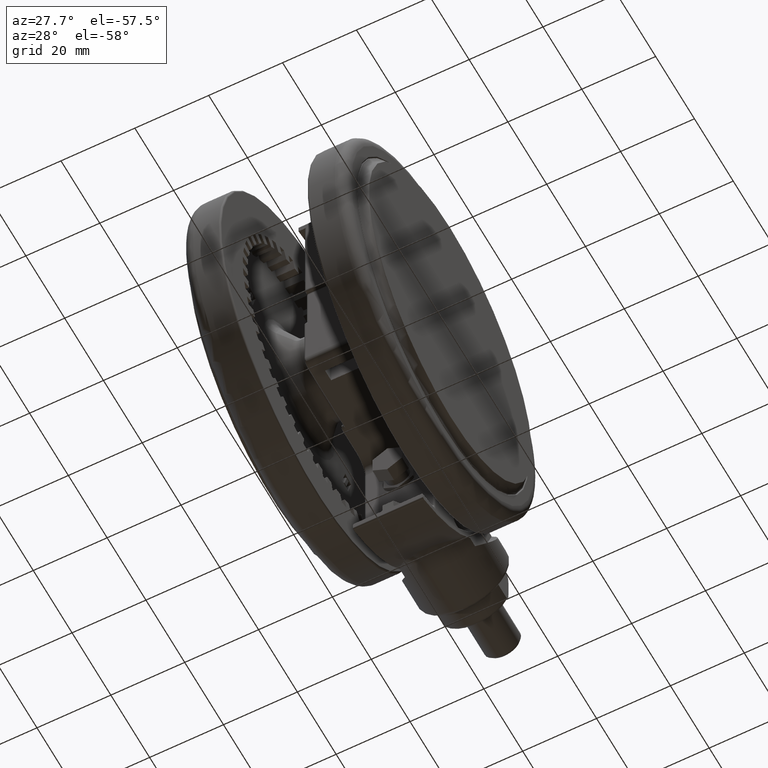
[diagram: clean part render]
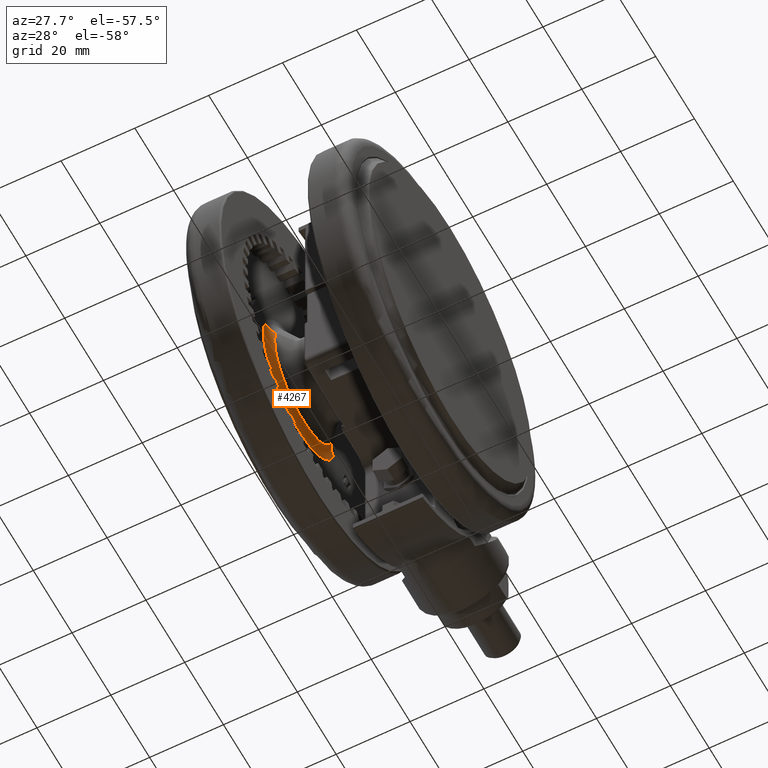
[diagram: same view with one face highlighted and labeled with its STEP entity id]
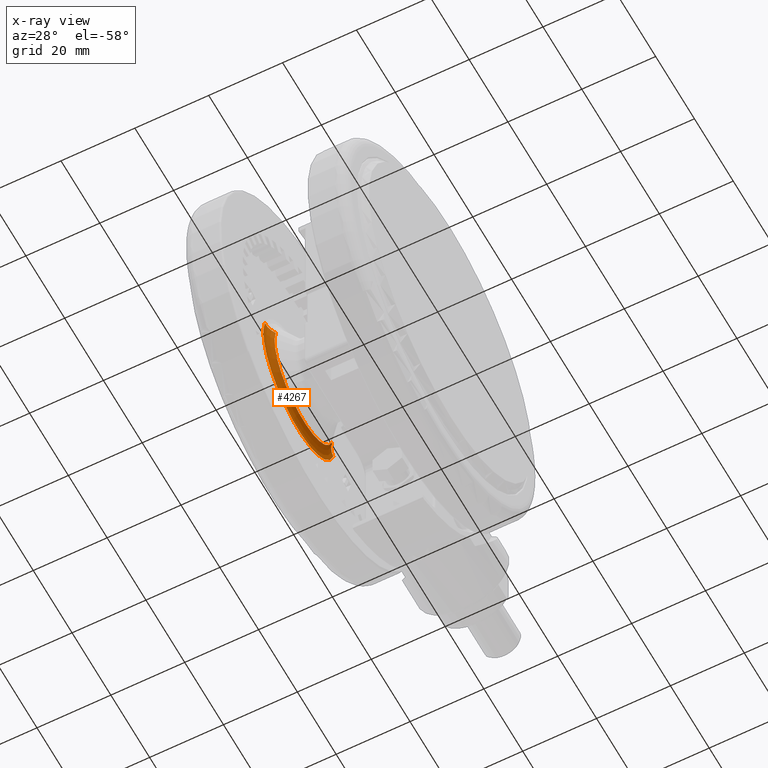
[diagram: x-ray of the same camera — body ghosted, the highlighted face saturated]
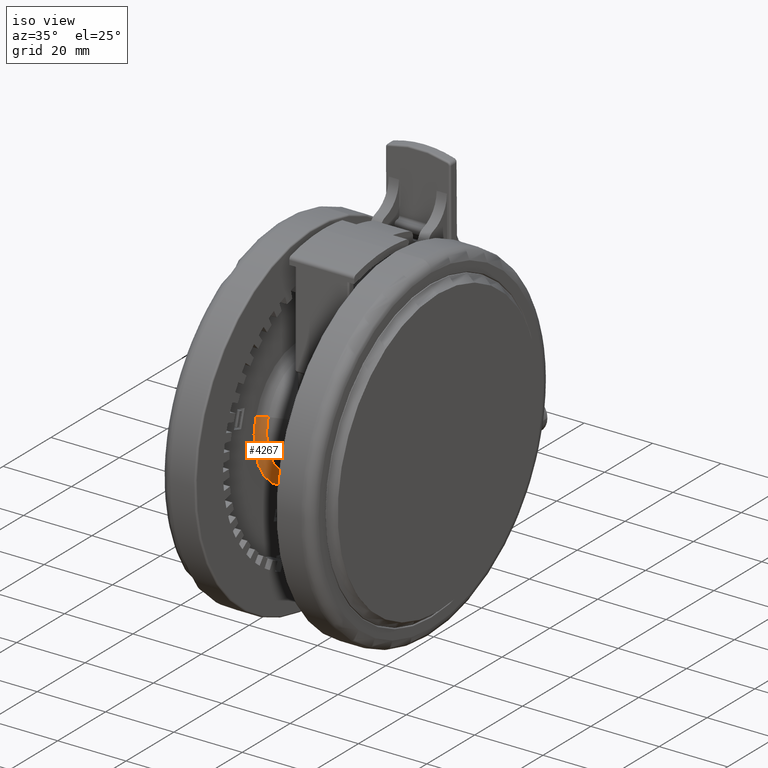
[diagram: same view with one face highlighted and labeled with its STEP entity id]
A machine part, auxiliary view. The second image highlights one B-rep face of the part: STEP entity #4267.
The next image is the same camera in x-ray: the body ghosted, the highlighted face saturated — about 1% of this face is hidden behind the body in this view.
A second angle (iso view) of the same face is appended — the face is thin or edge-on in the first view.
In plain terms, the highlighted toroidal blend (fillet) surface has major radius 18.433 mm and minor (blend) radius 5 mm.
Its self-contained STEP definition (entity closure, byte-faithful):
#492 = VERTEX_POINT ( 'NONE', #40558 ) ;
#1087 = EDGE_CURVE ( 'NONE', #23494, #492, #26741, .T. ) ;
#2047 = AXIS2_PLACEMENT_3D ( 'NONE', #17599, #43957, #21364 ) ;
#4267 = ADVANCED_FACE ( 'NONE', ( #45373 ), #11775, .F. ) ;
#5848 = CIRCLE ( 'NONE', #40724, 5.000000000000001800 ) ;
#6432 = DIRECTION ( 'NONE',  ( 0.9587657712597810200, -0.2841974592789974800, 3.017487239981052700E-017 ) ) ;
#6663 = DIRECTION ( 'NONE',  ( 3.627735541858005800E-017, 2.285606606468736200E-016, 1.000000000000000000 ) ) ;
#7749 = CIRCLE ( 'NONE', #33990, 18.43303437365925700 ) ;
#10869 = ORIENTED_EDGE ( 'NONE', *, *, #48097, .F. ) ;
#11775 = TOROIDAL_SURFACE ( 'NONE', #35659, 18.43303437365925400, 5.000000000000000000 ) ;
#11777 = CARTESIAN_POINT ( 'NONE',  ( 4.282762040897117700, 14.44828416721273400, -39.69970036697966300 ) ) ;
#12568 = CARTESIAN_POINT ( 'NONE',  ( 1.369665356293443100E-014, -8.859987182517343800E-015, -40.99999999999993600 ) ) ;
#14298 = DIRECTION ( 'NONE',  ( -0.2841974592789973700, -0.9587657712597809100, 2.294460703240664500E-016 ) ) ;
#16344 = DIRECTION ( 'NONE',  ( -0.2841974592789973100, -0.9587657712597810200, 0.0000000000000000000 ) ) ;
#17588 = EDGE_CURVE ( 'NONE', #23494, #18225, #5848, .T. ) ;
#17599 = CARTESIAN_POINT ( 'NONE',  ( -5.238621535796370100, -17.67296241791947900, -35.99999999999994300 ) ) ;
#18225 = VERTEX_POINT ( 'NONE', #41000 ) ;
#18912 = DIRECTION ( 'NONE',  ( 2.738200171890767100E-017, 1.985513823368855200E-016, 1.000000000000000000 ) ) ;
#19442 = CARTESIAN_POINT ( 'NONE',  ( -5.238621535796371000, -17.67296241791947900, -40.99999999999993600 ) ) ;
#21364 = DIRECTION ( 'NONE',  ( -0.2841974592789973100, -0.9587657712597810200, 0.0000000000000000000 ) ) ;
#21724 = ORIENTED_EDGE ( 'NONE', *, *, #27058, .F. ) ;
#23494 = VERTEX_POINT ( 'NONE', #11777 ) ;
#24286 = CIRCLE ( 'NONE', #2047, 5.000000000000001800 ) ;
#26741 = CIRCLE ( 'NONE', #40275, 15.06967040367769600 ) ;
#27058 = EDGE_CURVE ( 'NONE', #492, #32206, #24286, .T. ) ;
#29056 = CARTESIAN_POINT ( 'NONE',  ( 5.238621535796400300, 17.67296241791946400, -35.99999999999994300 ) ) ;
#29437 = ORIENTED_EDGE ( 'NONE', *, *, #17588, .T. ) ;
#32206 = VERTEX_POINT ( 'NONE', #19442 ) ;
#32858 = DIRECTION ( 'NONE',  ( 0.2841974592789974800, 0.9587657712597810200, 0.0000000000000000000 ) ) ;
#33990 = AXIS2_PLACEMENT_3D ( 'NONE', #12568, #38920, #16344 ) ;
#35659 = AXIS2_PLACEMENT_3D ( 'NONE', #36702, #6663, #14298 ) ;
#36702 = CARTESIAN_POINT ( 'NONE',  ( 1.387804034002733000E-014, -7.717183879282975700E-015, -35.99999999999994300 ) ) ;
#38920 = DIRECTION ( 'NONE',  ( -3.627735541858005800E-017, -2.285606606468736200E-016, -1.000000000000000000 ) ) ;
#39270 = ORIENTED_EDGE ( 'NONE', *, *, #1087, .F. ) ;
#40275 = AXIS2_PLACEMENT_3D ( 'NONE', #41488, #18912, #45288 ) ;
#40558 = CARTESIAN_POINT ( 'NONE',  ( -4.282762040897086600, -14.44828416721274400, -39.69970036697966300 ) ) ;
#40724 = AXIS2_PLACEMENT_3D ( 'NONE', #29056, #6432, #32858 ) ;
#41000 = CARTESIAN_POINT ( 'NONE',  ( 5.238621535796399400, 17.67296241791946400, -40.99999999999993600 ) ) ;
#41488 = CARTESIAN_POINT ( 'NONE',  ( 1.374382499487215700E-014, -8.562789839355341000E-015, -39.69970036697966300 ) ) ;
#43957 = DIRECTION ( 'NONE',  ( -0.9587657712597810200, 0.2841974592789973700, -3.017487239981049000E-017 ) ) ;
#45288 = DIRECTION ( 'NONE',  ( 0.2841974592789973700, 0.9587657712597809100, 0.0000000000000000000 ) ) ;
#45373 = FACE_OUTER_BOUND ( 'NONE', #47156, .T. ) ;
#47156 = EDGE_LOOP ( 'NONE', ( #39270, #29437, #10869, #21724 ) ) ;
#48097 = EDGE_CURVE ( 'NONE', #32206, #18225, #7749, .T. ) ;